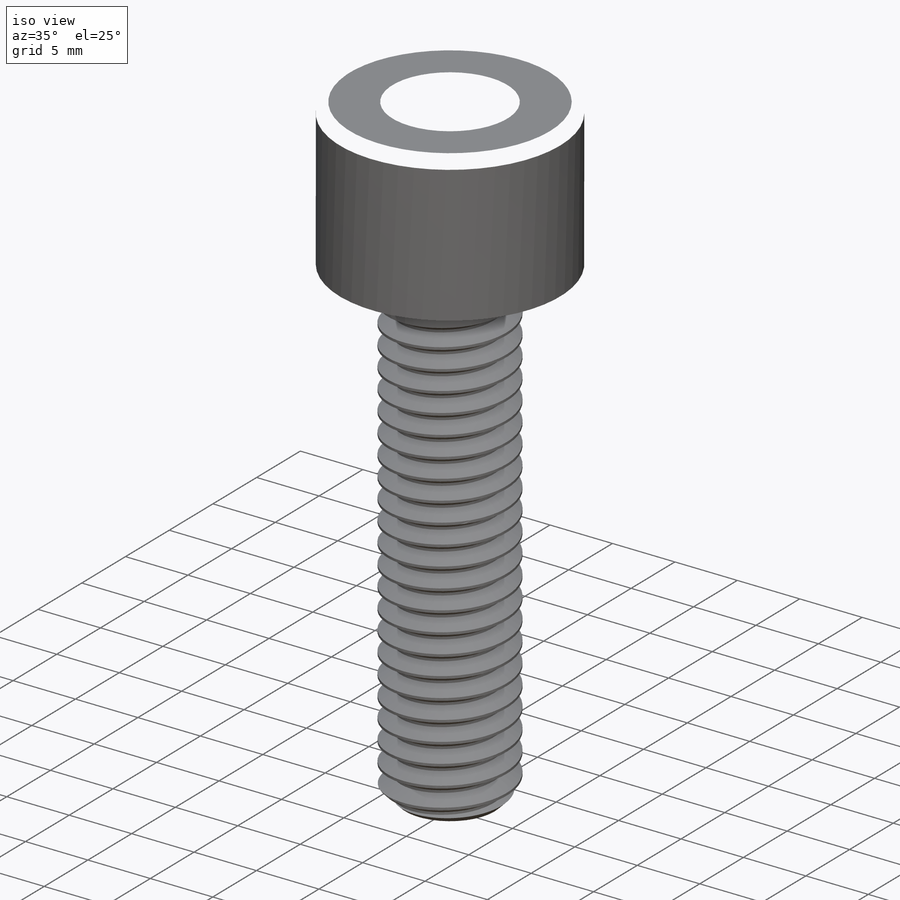
[diagram: iso view]
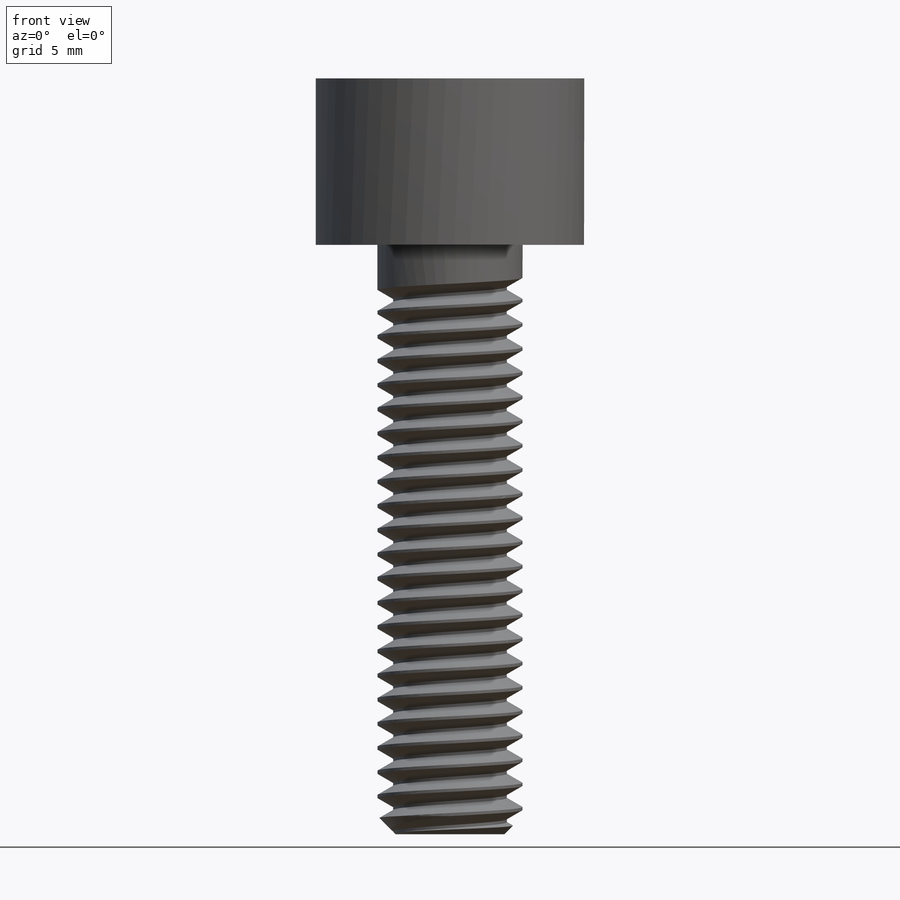
[diagram: front view]
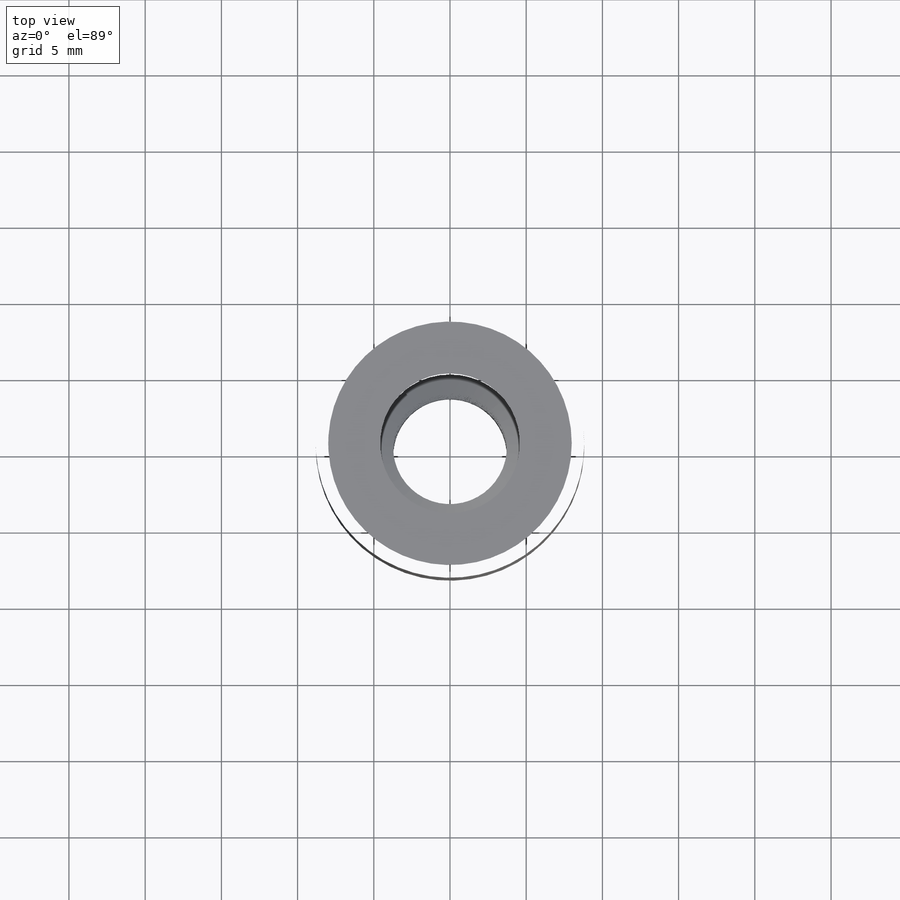
[diagram: top view]
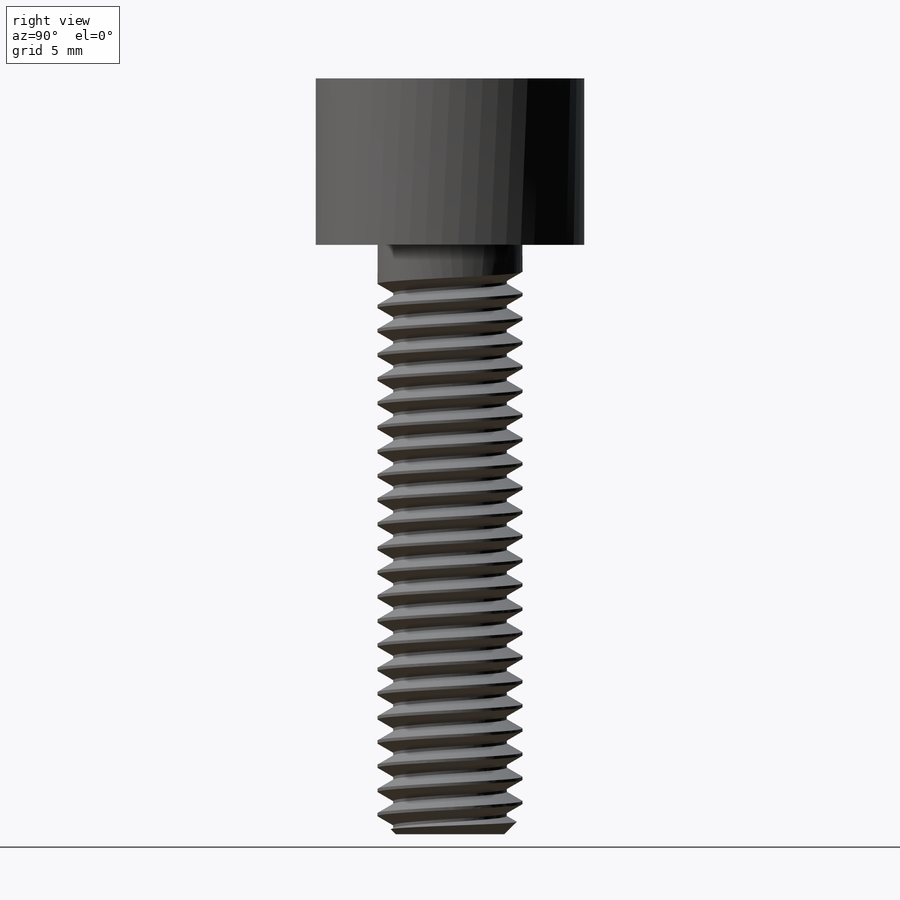
[diagram: right view]
SOLIDWORKS PART (.sldprt)
format: sldprt  version: not decoded by parser v0  size: 1,280,000 bytes
history: native  units: mm
features: sketch x19, mirror x5, revolve x4, cut_extrude x4, cut_revolve x3, sweep x2, chamfer x2, extrude x2, material x1, helix x1, plane x1 (+17 scaffold rows collapsed; 2 parser-record rows omitted)
feature tree (63):
  scaffold x17  (default folders/planes/origin — collapsed)
  material  "Material <not specified>"
  sketch  "Sketch3"  dims[c1.Head Height=20.701mm c1.Head Dia=31.0515mm c1.D1=0.127mm c1.Bail-Base Ht=50.8mm c1.D3=~0.856238mm c2.D3=45.0deg c2.D4=2.8575mm c2.Body Dia=47.625mm c2.D6=~1.481667mm c2.D7=37.973mm c2.D8=~59.77636mm c3.D6=~1.481667mm c3.Bearing Dia=19.05mm c4.D6=~3.386667mm c4.Thread Dia=9.525mm c4.Thread Length=14.2875mm c4.D2=5.08mm c5.D6=21.844mm c5.Oall Ht=~132.583059mm c5.Ring Thick=~11.781841mm c5.Thickness=11.176mm c5.Supplier M=88.646mm c6.Oall Ht=98.425mm c6.Supplier C=72.898mm c6.Body Dia=31.75mm c6.Head Ht=11.7475mm c6.Inner Gap=36.83mm c6.Body Ht=24.384mm c6.Inside Wd=31.75mm c6.D1=~50.717045mm]
  revolve  "Revolve1"  Angle=360deg
  sketch  "Sketch7"  dims[D1=62.484mm]
  revolve  "Revolve2"  Angle=360deg
  sketch  "Sketch1"  dims[c1.Ring Dia=19.05mm c1.Height=234.95mm c1.ID=101.6mm c2.Height=266.7mm c3.Height=134.9375mm c3.Oall Ht=134.9375mm]
  sketch  "Sketch2"
  sweep  "Sweep1"
  sketch  "Sketch19"  dims[D1=0.0mm]
  helix  "Helix/Spiral1"  Pitch=37.084mm
  sketch  "Sketch20"  dims[c1.D1=~0.198437mm c1.D2=~1.329585mm c2.D2=60.0deg c2.D3=~0.79375mm]
  chamfer  "Chamfer2"  Distance=1.190625mm Angle=45deg
  sweep  "Cut-Sweep1"
  chamfer  "Chamfer1"  Distance=0.822325mm Angle=45deg
  sketch  "Sketch9"  dims[Key Size=7.9375mm]
  cut_extrude  "Cut-Extrude4"  Depth=4.699mm
  sketch  "Sketch10"
  cut_extrude  "Cut-Extrude5"  Depth=4.572mm
  sketch  "Sketch8"  dims[D1=0.127mm]
  cut_revolve  "Cut-Revolve1"  Angle=360deg
  sketch  "Sketch13"  dims[c1.Overall Width=58.7375mm c2.Overall Width=58.7375mm]
  revolve  "Revolve3"  Angle=360deg
  mirror  "Mirror2"
  parser-record x2  (decoder bookkeeping rows leaked as tree rows — omitted from the tree; the rows remain in map.json)
  sketch  "Sketch15"  dims[D1=0.508mm D2=~58.535132mm]
  cut_extrude  "Cut-Extrude7"  [1 undecoded]
  mirror  "Mirror3"
  sketch  "Sketch16"  dims[c1.D1=4.572mm c1.D2=12.7mm c2.D1=5.08mm]
  cut_revolve  "Cut-Revolve8"  Angle=360deg
  mirror  "Mirror4"
  sketch  "Sketch17"  dims[c1.D2=~37.390129mm c1.D1=7.8232mm c2.D2=~170.740129mm]
  revolve  "Revolve4"  Angle=360deg
  sketch  "Sketch18"  dims[D1=0.127mm D2=0.127mm]
  cut_revolve  "Cut-Revolve9"  Angle=360deg
  mirror  "Mirror5"
  mirror  "Mirror6"
  plane  "Plane1"  Offset=3.175mm
  sketch  "Sketch23"
  extrude  "Boss-Extrude1"  [1 undecoded]
  sketch  "Sketch24"
  cut_extrude  "Cut-Extrude8"  [1 undecoded]
  sketch  "Sketch25"  dims[D1=~49.186965mm]
  extrude  "Boss-Extrude2"  Depth=1.190625mm
  sketch  "Sketch21"
  sketch  "Sketch22"  dims[D1=9.525mm]
decode coverage: 27 of 42 modeling features carry decoded parameters
note: ~ marks probable driven/reference dimensions
note: 3 parameter values undecoded
summary: no parameter record found for 3 features
note: suppression state not decoded; provenance and decode notes live in map.json
